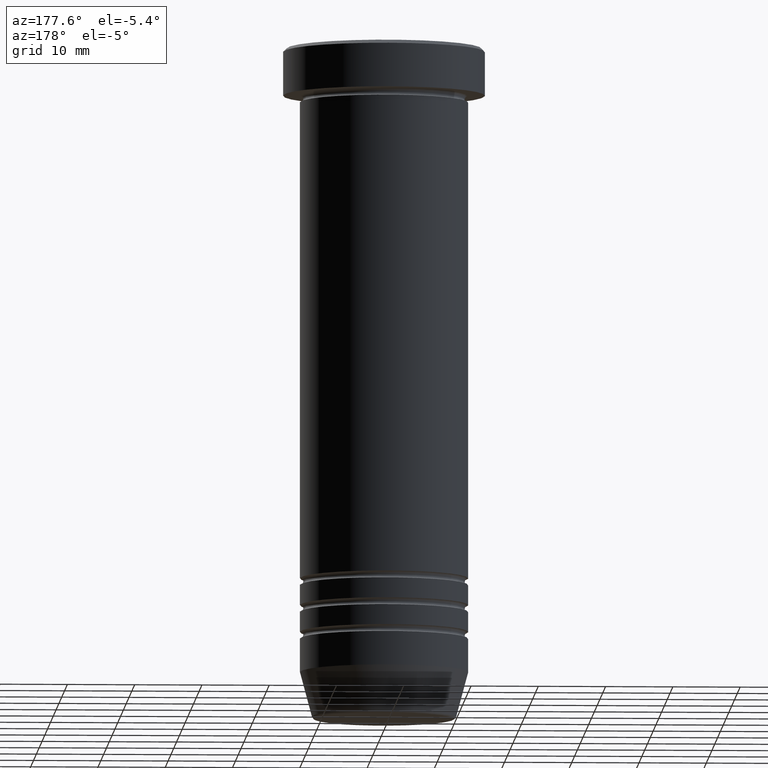
[diagram: clean part render]
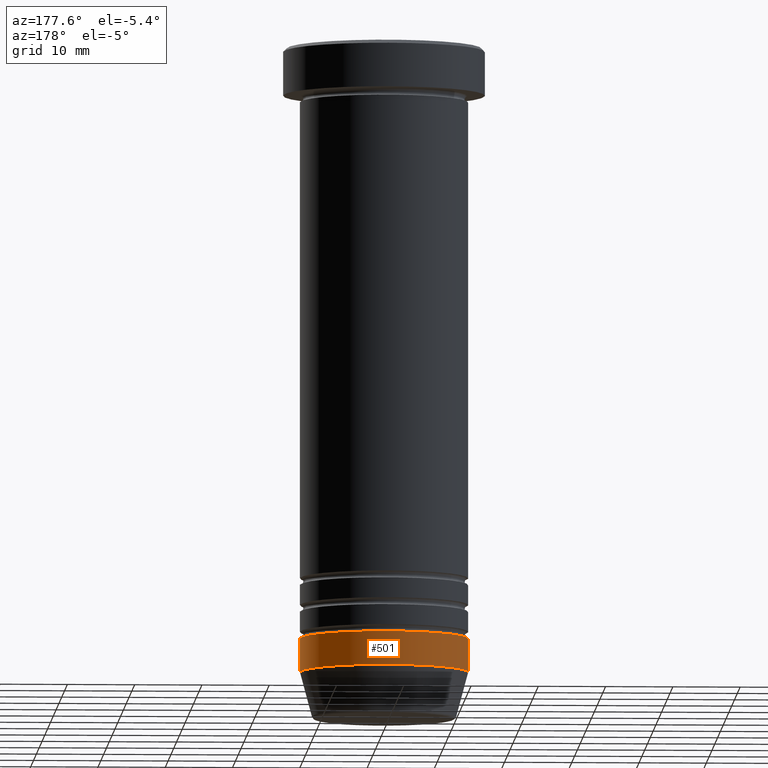
[diagram: same view with one face highlighted and labeled with its STEP entity id]
A machine part, auxiliary view. The second image highlights one B-rep face of the part: STEP entity #501.
In plain terms, the highlighted cylindrical surface (partial cylindrical patch) has radius 12.5 mm, axis along (-0, -0, 1).
Its self-contained STEP definition (entity closure, byte-faithful):
#24 = VERTEX_POINT ( 'NONE', #1002 ) ;
#28 = ORIENTED_EDGE ( 'NONE', *, *, #258, .F. ) ;
#51 = VERTEX_POINT ( 'NONE', #341 ) ;
#161 = CARTESIAN_POINT ( 'NONE',  ( 12.50000000000000000, 0.000000000000000000, 0.000000000000000000 ) ) ;
#243 = DIRECTION ( 'NONE',  ( -0.000000000000000000, -0.000000000000000000, 1.000000000000000000 ) ) ;
#250 = VECTOR ( 'NONE', #243, 1000.000000000000000 ) ;
#258 = EDGE_CURVE ( 'NONE', #24, #51, #572, .T. ) ;
#292 = DIRECTION ( 'NONE',  ( -0.000000000000000000, -0.000000000000000000, 1.000000000000000000 ) ) ;
#336 = CARTESIAN_POINT ( 'NONE',  ( -12.50000000000000000, 1.530808498934191521E-15, 0.000000000000000000 ) ) ;
#341 = CARTESIAN_POINT ( 'NONE',  ( 12.50000000000000000, 0.000000000000000000, -88.00000000000000000 ) ) ;
#358 = CARTESIAN_POINT ( 'NONE',  ( -12.50000000000000000, 1.530808498934191521E-15, -88.00000000000000000 ) ) ;
#363 = DIRECTION ( 'NONE',  ( 1.000000000000000000, 0.000000000000000000, 0.000000000000000000 ) ) ;
#367 = DIRECTION ( 'NONE',  ( -0.000000000000000000, -0.000000000000000000, 1.000000000000000000 ) ) ;
#374 = EDGE_LOOP ( 'NONE', ( #576, #1046, #699, #28 ) ) ;
#387 = CIRCLE ( 'NONE', #649, 12.50000000000000000 ) ;
#447 = CARTESIAN_POINT ( 'NONE',  ( 0.000000000000000000, 0.000000000000000000, -93.00000000000000000 ) ) ;
#483 = DIRECTION ( 'NONE',  ( -0.000000000000000000, -0.000000000000000000, 1.000000000000000000 ) ) ;
#501 = ADVANCED_FACE ( 'NONE', ( #575 ), #1004, .T. ) ;
#531 = DIRECTION ( 'NONE',  ( 1.000000000000000000, 0.000000000000000000, 0.000000000000000000 ) ) ;
#562 = VERTEX_POINT ( 'NONE', #358 ) ;
#572 = LINE ( 'NONE', #161, #849 ) ;
#575 = FACE_OUTER_BOUND ( 'NONE', #374, .T. ) ;
#576 = ORIENTED_EDGE ( 'NONE', *, *, #707, .T. ) ;
#578 = CIRCLE ( 'NONE', #955, 12.50000000000000000 ) ;
#581 = LINE ( 'NONE', #336, #250 ) ;
#629 = CARTESIAN_POINT ( 'NONE',  ( 0.000000000000000000, 0.000000000000000000, -88.00000000000000000 ) ) ;
#649 = AXIS2_PLACEMENT_3D ( 'NONE', #629, #292, #363 ) ;
#695 = CARTESIAN_POINT ( 'NONE',  ( -12.50000000000000000, 1.530808498934191521E-15, -93.00000000000000000 ) ) ;
#699 = ORIENTED_EDGE ( 'NONE', *, *, #943, .F. ) ;
#707 = EDGE_CURVE ( 'NONE', #24, #960, #578, .T. ) ;
#767 = CARTESIAN_POINT ( 'NONE',  ( 0.000000000000000000, 0.000000000000000000, 0.000000000000000000 ) ) ;
#782 = DIRECTION ( 'NONE',  ( 1.000000000000000000, 0.000000000000000000, 0.000000000000000000 ) ) ;
#789 = EDGE_CURVE ( 'NONE', #960, #562, #581, .T. ) ;
#795 = AXIS2_PLACEMENT_3D ( 'NONE', #767, #839, #531 ) ;
#839 = DIRECTION ( 'NONE',  ( -0.000000000000000000, -0.000000000000000000, 1.000000000000000000 ) ) ;
#849 = VECTOR ( 'NONE', #483, 1000.000000000000000 ) ;
#943 = EDGE_CURVE ( 'NONE', #51, #562, #387, .T. ) ;
#955 = AXIS2_PLACEMENT_3D ( 'NONE', #447, #367, #782 ) ;
#960 = VERTEX_POINT ( 'NONE', #695 ) ;
#1002 = CARTESIAN_POINT ( 'NONE',  ( 12.50000000000000000, 0.000000000000000000, -93.00000000000000000 ) ) ;
#1004 = CYLINDRICAL_SURFACE ( 'NONE', #795, 12.50000000000000000 ) ;
#1046 = ORIENTED_EDGE ( 'NONE', *, *, #789, .T. ) ;